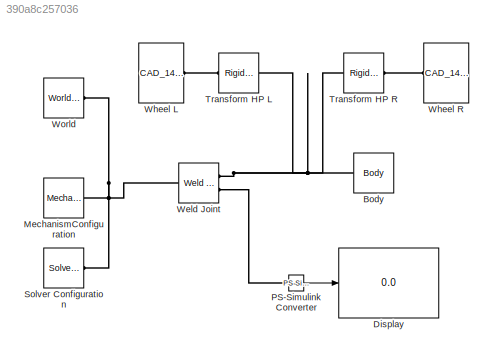
MODEL slx_390a8c257036
KIND model
CONFIG AbsTol = auto
CONFIG EnableMultiTasking = off
CONFIG FixedStep = auto
CONFIG MaxStep = auto
CONFIG MinStep = auto
CONFIG RelTol = 1e-3
CONFIG SampleTimeConstraint = Unconstrained
CONFIG SolverName = VariableStepAuto
CONFIG StartTime = 0.0
CONFIG StopTime = 10.0
BLOCK [Reference] Body  REF=Trailer_Thwala_Parts/Body
  Ports = [0, 0, 0, 0, 0, 1]
  SourceBlock = Trailer_Thwala_Parts/Body
BLOCK [Display] Display
  Decimation = 1
  Ports = [1]
BLOCK [Reference] MechanismConfiguration  REF=sm_lib/Utilities/Mechanism
Configuration
  Ports = [0, 0, 0, 0, 0, 0, 1]
  SourceBlock = sm_lib/Utilities/Mechanism\nConfiguration
  SourceProductBaseCode = MS
  SourceType = Mechanism\nConfiguration
BLOCK [Reference] PS-Simulink Converter  REF=nesl_utility/PS-Simulink
Converter
  Ports = [0, 1, 0, 0, 0, 1]
  SourceBlock = nesl_utility/PS-Simulink\nConverter
  SourceProductBaseCode = SS,PW,VE
  SourceType = PS-Simulink\nConverter
BLOCK [Reference] Solver Configuration  REF=nesl_utility/Solver
Configuration
  Ports = [0, 0, 0, 0, 0, 0, 1]
  SourceBlock = nesl_utility/Solver\nConfiguration
  SourceProductBaseCode = SS,PW,VE
  SourceType = Solver\nConfiguration
BLOCK [Reference] Transform HP L  REF=sm_lib/Frames and
Transforms/Rigid
Transform
  Ports = [0, 0, 0, 0, 0, 1, 1]
  SourceBlock = sm_lib/Frames and\nTransforms/Rigid\nTransform
  SourceProductBaseCode = MS
  SourceType = Rigid\nTransform
BLOCK [Reference] Transform HP R  REF=sm_lib/Frames and
Transforms/Rigid
Transform
  Ports = [0, 0, 0, 0, 0, 1, 1]
  SourceBlock = sm_lib/Frames and\nTransforms/Rigid\nTransform
  SourceProductBaseCode = MS
  SourceType = Rigid\nTransform
BLOCK [Reference] Weld Joint  REF=sm_lib/Joints/Weld Joint
  Ports = [0, 0, 0, 0, 0, 1, 2]
  SourceBlock = sm_lib/Joints/Weld Joint
  SourceProductBaseCode = MS
  SourceType = Weld Joint
BLOCK [Reference] Wheel L  REF=Trailer_Thwala_Parts/CAD_145_70R13
  AttributesFormatString = %<LabelModeActiveChoice>
  Ports = [0, 0, 0, 0, 0, 1]
  SourceBlock = Trailer_Thwala_Parts/CAD_145_70R13
BLOCK [Reference] Wheel R  REF=Trailer_Thwala_Parts/CAD_145_70R13
  AttributesFormatString = %<LabelModeActiveChoice>
  Ports = [0, 0, 0, 0, 0, 1]
  SourceBlock = Trailer_Thwala_Parts/CAD_145_70R13
BLOCK [Reference] World  REF=sm_lib/Frames and
Transforms/World Frame
  Ports = [0, 0, 0, 0, 0, 0, 1]
  SourceBlock = sm_lib/Frames and\nTransforms/World Frame
  SourceProductBaseCode = MS
  SourceType = World Frame
LINE PS-Simulink Converter:1 -> Display:1
PNET net1: Body:LConn1 -- Transform HP L:LConn1 -- Transform HP R:LConn1 -- Weld Joint:RConn1
PNET net2: MechanismConfiguration:RConn1 -- Solver Configuration:RConn1 -- Weld Joint:LConn1 -- World:RConn1
PLINE PS-Simulink Converter:LConn1 -- Weld Joint:RConn2
PLINE Transform HP L:RConn1 -- Wheel L:LConn1
PLINE Transform HP R:RConn1 -- Wheel R:LConn1
note: PNET lines group multi-terminal physical nets as a canonical sorted terminal list (undirected conserving connections); 2-terminal nets keep the pairwise PLINE form
